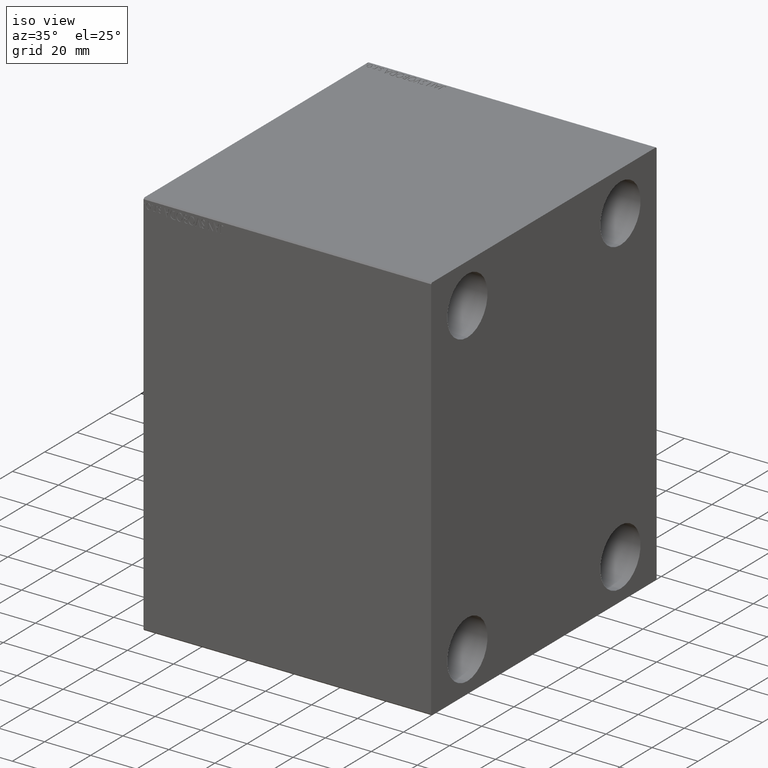
[diagram: clean part render]
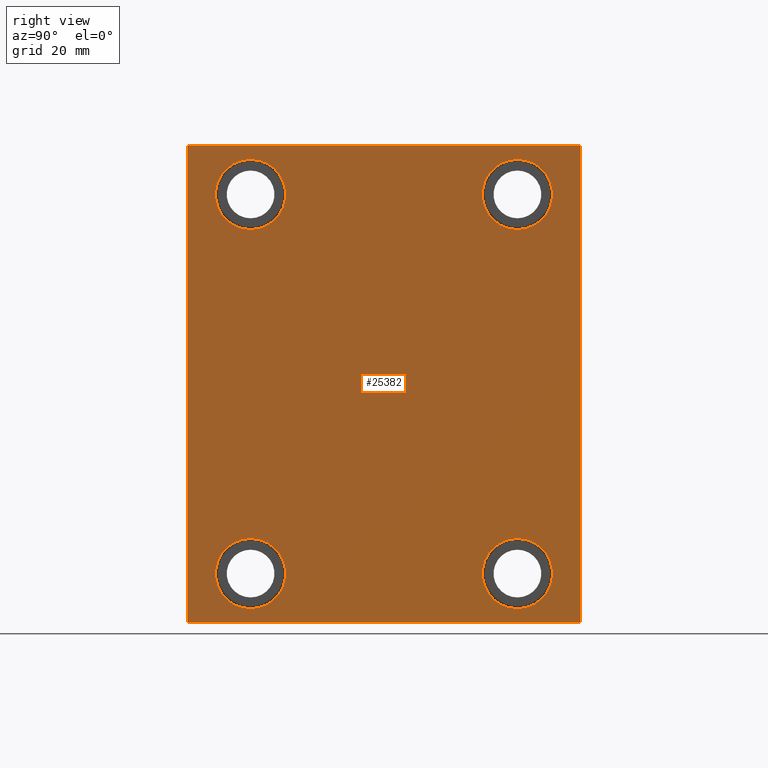
[diagram: tour spotlight — one face highlighted and labeled with its STEP entity id]
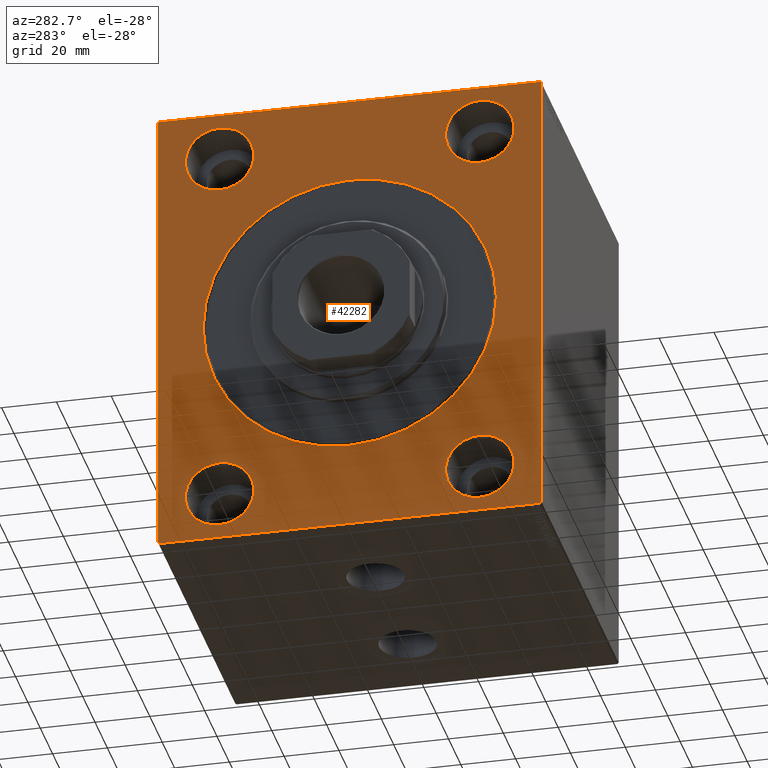
[diagram: tour spotlight — one face highlighted and labeled with its STEP entity id]
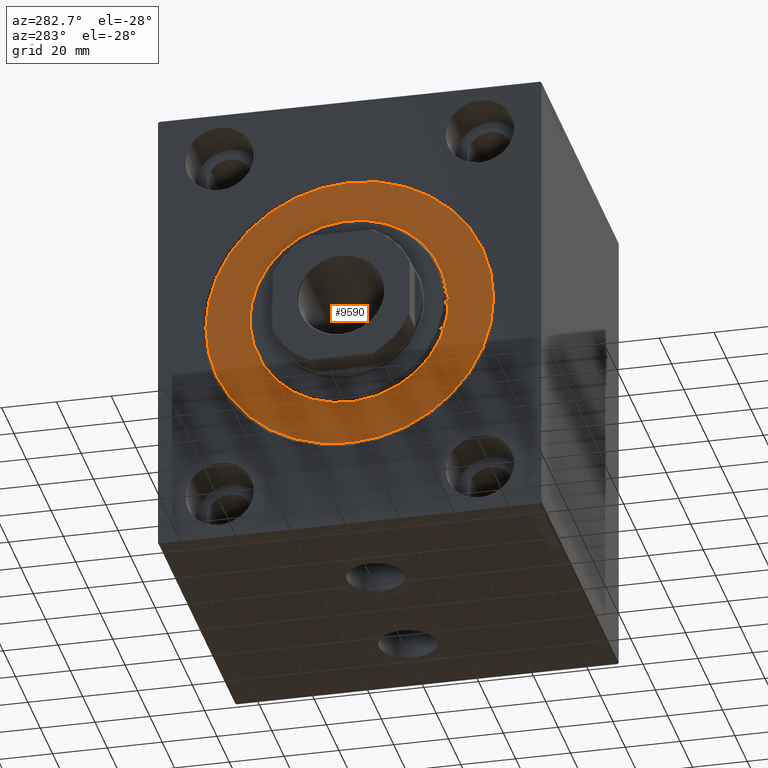
[diagram: tour spotlight — one face highlighted and labeled with its STEP entity id]
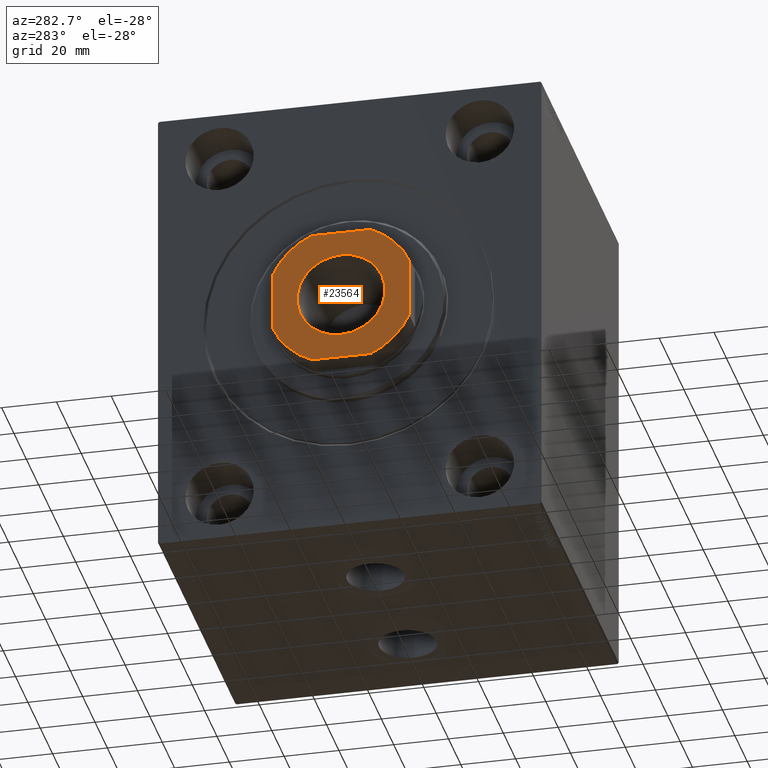
[diagram: tour spotlight — one face highlighted and labeled with its STEP entity id]
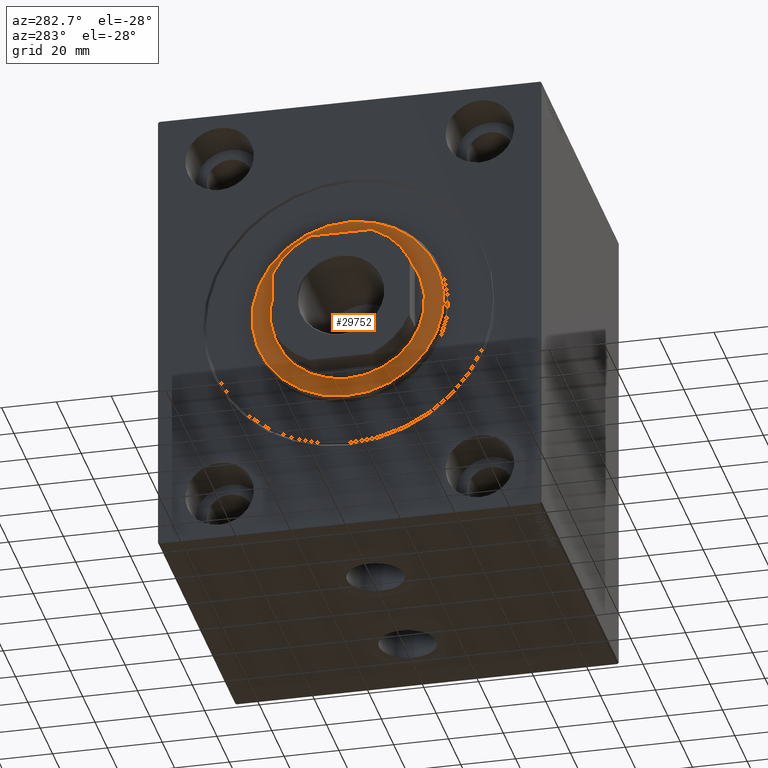
[diagram: tour spotlight — one face highlighted and labeled with its STEP entity id]
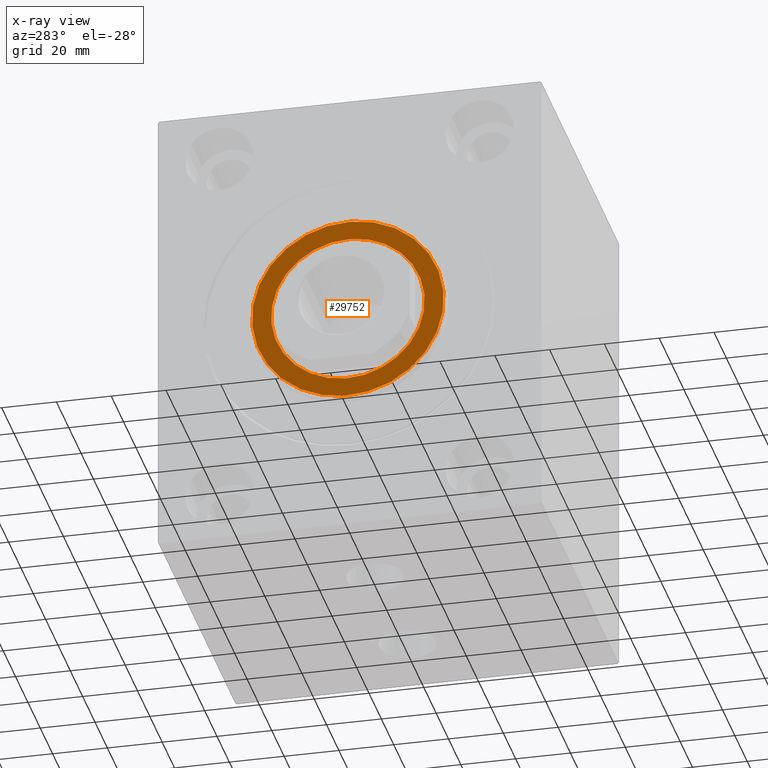
[diagram: x-ray of the same camera — body ghosted, this tour face saturated]
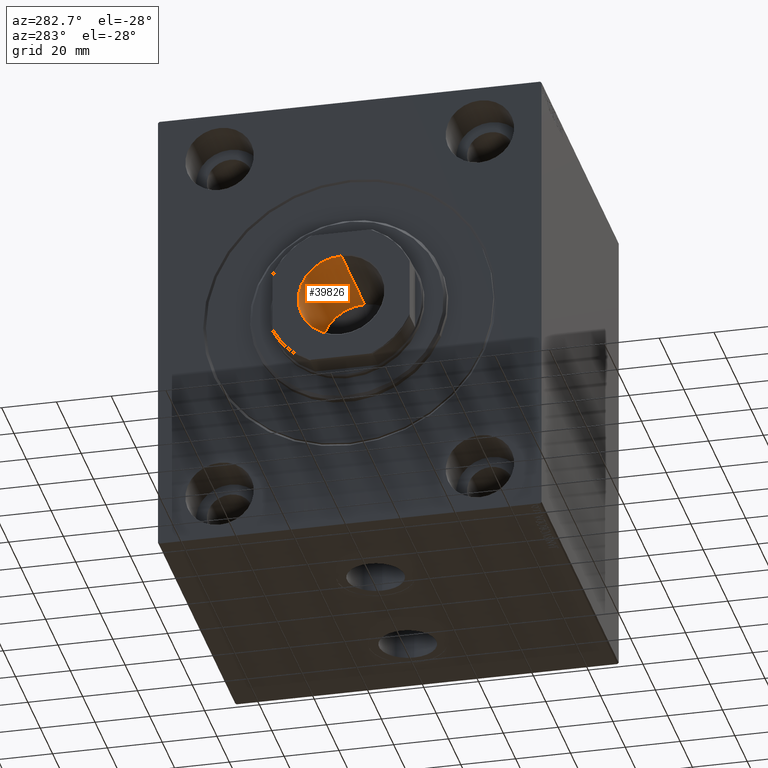
[diagram: tour spotlight — one face highlighted and labeled with its STEP entity id]
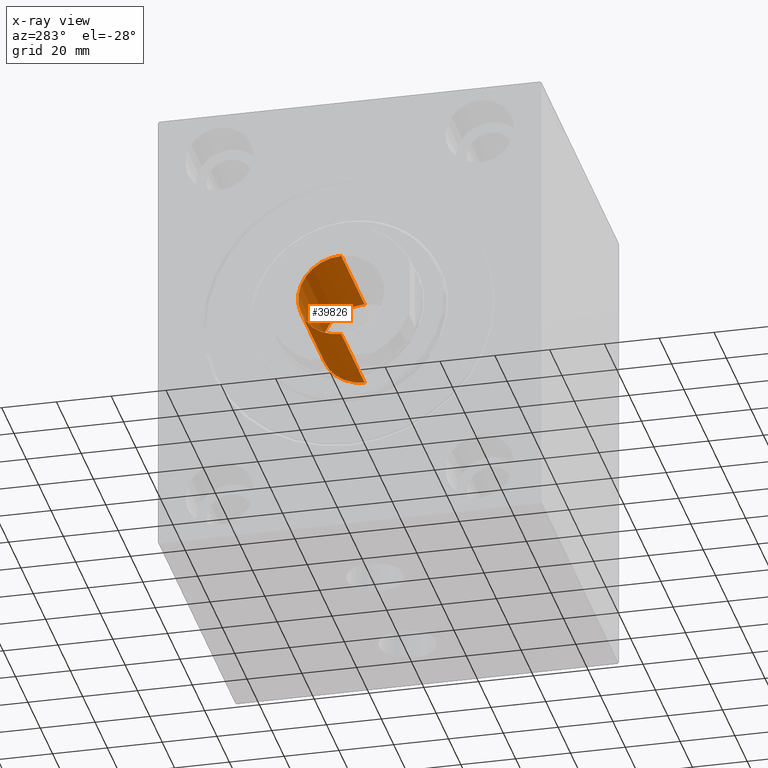
[diagram: x-ray of the same camera — body ghosted, this tour face saturated]
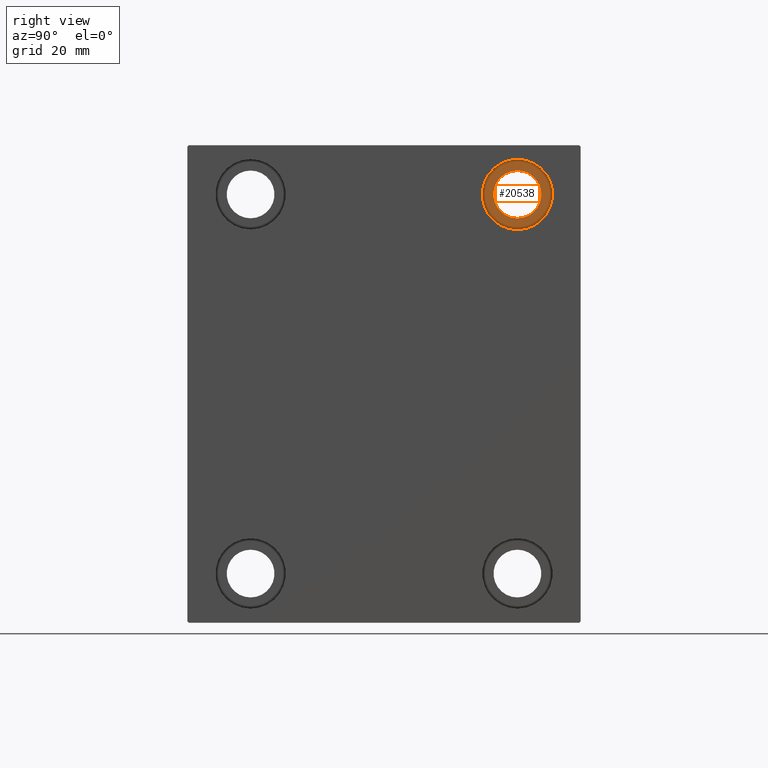
[diagram: tour spotlight — one face highlighted and labeled with its STEP entity id]
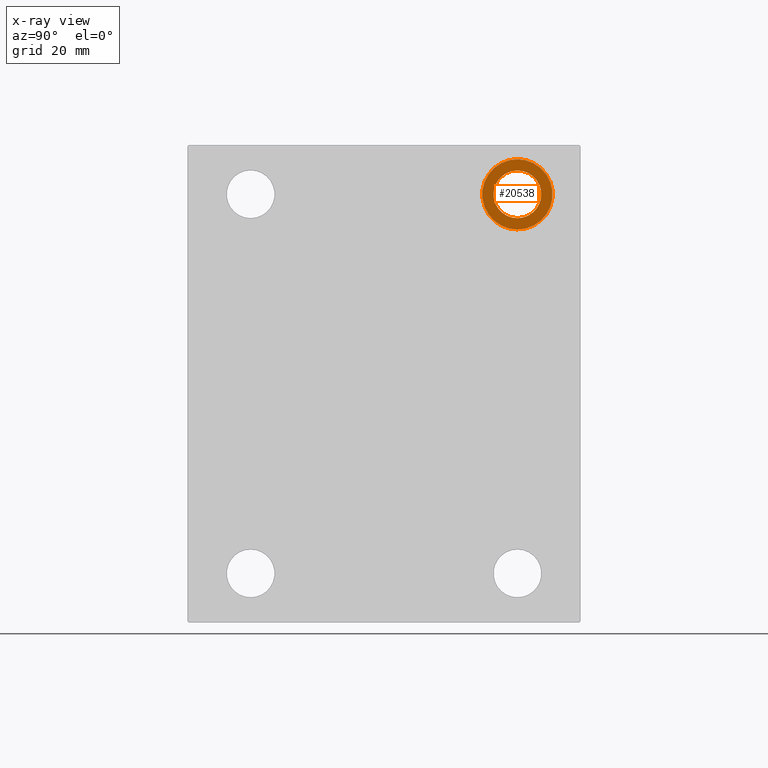
[diagram: x-ray of the same camera — body ghosted, this tour face saturated]
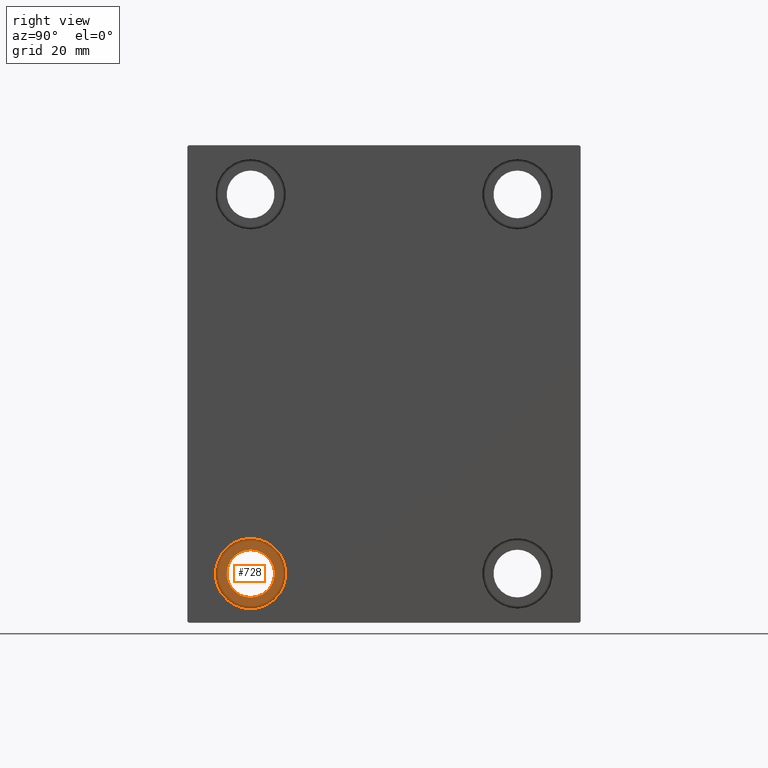
[diagram: tour spotlight — one face highlighted and labeled with its STEP entity id]
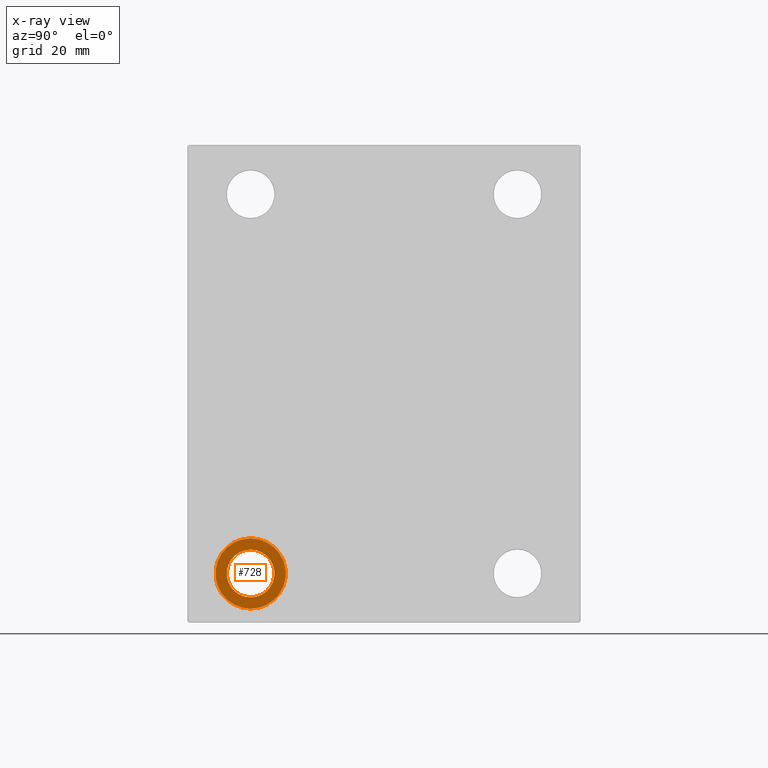
[diagram: x-ray of the same camera — body ghosted, this tour face saturated]
A machine part: a face-by-face anatomy tour. The part has 863 B-rep faces; the first image is the clean iso view, then the 8 largest visible faces are spotlighted one at a time (largest first), each with its STEP entity span.

Face 1 — right view, entity #25382. In plain terms, the highlighted planar face has unit normal (1, 0, 0).
Definition (entity closure, byte-faithful):
#46 = EDGE_CURVE ( 'NONE', #38748, #11351, #19874, .T. ) ;
#124 = VERTEX_POINT ( 'NONE', #10916 ) ;
#186 = ORIENTED_EDGE ( 'NONE', *, *, #43561, .T. ) ;
#932 = CARTESIAN_POINT ( 'NONE',  ( 125.0000000000000000, 47.50000000000000711, 67.50000000000000000 ) ) ;
#958 = VERTEX_POINT ( 'NONE', #6940 ) ;
#2119 = VERTEX_POINT ( 'NONE', #4474 ) ;
#2281 = AXIS2_PLACEMENT_3D ( 'NONE', #16155, #37038, #13243 ) ;
#2325 = DIRECTION ( 'NONE',  ( -1.000000000000000000, -0.000000000000000000, -0.000000000000000000 ) ) ;
#2379 = FACE_BOUND ( 'NONE', #17771, .T. ) ;
#2479 = CARTESIAN_POINT ( 'NONE',  ( 125.0000000000000000, 47.50000000000000711, -55.00000000000000711 ) ) ;
#2594 = FACE_BOUND ( 'NONE', #30062, .T. ) ;
#2765 = EDGE_CURVE ( 'NONE', #43585, #30818, #8477, .T. ) ;
#3259 = LINE ( 'NONE', #25366, #38083 ) ;
#3671 = DIRECTION ( 'NONE',  ( 0.000000000000000000, -1.000000000000000000, -9.912705577010325549E-17 ) ) ;
#3715 = EDGE_CURVE ( 'NONE', #38091, #28429, #23521, .T. ) ;
#4349 = ORIENTED_EDGE ( 'NONE', *, *, #23472, .T. ) ;
#4474 = CARTESIAN_POINT ( 'NONE',  ( 125.0000000000000000, 70.00000000000002842, -84.50000000000004263 ) ) ;
#5683 = CARTESIAN_POINT ( 'NONE',  ( 125.0000000000000000, -69.99999999999998579, -85.00000000000002842 ) ) ;
#5963 = CARTESIAN_POINT ( 'NONE',  ( 125.0000000000000000, 47.50000000000000711, -80.00000000000000000 ) ) ;
#6040 = AXIS2_PLACEMENT_3D ( 'NONE', #932, #37406, #13839 ) ;
#6487 = CARTESIAN_POINT ( 'NONE',  ( 125.0000000000000000, -47.49999999999999289, -67.50000000000000000 ) ) ;
#6564 = LINE ( 'NONE', #34144, #22833 ) ;
#6940 = CARTESIAN_POINT ( 'NONE',  ( 125.0000000000000000, -47.49999999999997868, 80.00000000000001421 ) ) ;
#7064 = CARTESIAN_POINT ( 'NONE',  ( 125.0000000000000000, -69.99999999999998579, 84.99999999999998579 ) ) ;
#7818 = DIRECTION ( 'NONE',  ( 0.000000000000000000, 0.000000000000000000, 1.000000000000000000 ) ) ;
#8030 = ORIENTED_EDGE ( 'NONE', *, *, #10793, .T. ) ;
#8193 = CIRCLE ( 'NONE', #37308, 12.50000000000001066 ) ;
#8477 = LINE ( 'NONE', #18493, #31306 ) ;
#8496 = CARTESIAN_POINT ( 'NONE',  ( 125.0000000000000000, -47.49999999999999289, -80.00000000000000000 ) ) ;
#8863 = ORIENTED_EDGE ( 'NONE', *, *, #2765, .T. ) ;
#8988 = DIRECTION ( 'NONE',  ( 0.000000000000000000, 0.000000000000000000, 1.000000000000000000 ) ) ;
#9706 = VECTOR ( 'NONE', #41365, 1000.000000000000000 ) ;
#10042 = DIRECTION ( 'NONE',  ( -1.000000000000000000, -0.000000000000000000, -0.000000000000000000 ) ) ;
#10595 = EDGE_CURVE ( 'NONE', #958, #15323, #35291, .T. ) ;
#10793 = EDGE_CURVE ( 'NONE', #2119, #30743, #31166, .T. ) ;
#10916 = CARTESIAN_POINT ( 'NONE',  ( 125.0000000000000000, 69.49999999999998579, 85.00000000000000000 ) ) ;
#11351 = VERTEX_POINT ( 'NONE', #8496 ) ;
#11523 = ORIENTED_EDGE ( 'NONE', *, *, #38945, .T. ) ;
#12066 = CARTESIAN_POINT ( 'NONE',  ( 125.0000000000000000, 70.00000000000001421, 84.49999999999995737 ) ) ;
#13086 = VECTOR ( 'NONE', #29723, 1000.000000000000000 ) ;
#13139 = CIRCLE ( 'NONE', #20969, 12.49999999999999645 ) ;
#13243 = DIRECTION ( 'NONE',  ( 0.000000000000000000, 0.000000000000000000, -1.000000000000000000 ) ) ;
#13839 = DIRECTION ( 'NONE',  ( 0.000000000000000000, 0.000000000000000000, 1.000000000000000000 ) ) ;
#13856 = DIRECTION ( 'NONE',  ( 0.000000000000000000, 0.000000000000000000, 1.000000000000000000 ) ) ;
#14365 = CARTESIAN_POINT ( 'NONE',  ( 125.0000000000000000, -69.99999999999998579, -84.49999999999998579 ) ) ;
#14662 = CIRCLE ( 'NONE', #24630, 12.49999999999999645 ) ;
#15323 = VERTEX_POINT ( 'NONE', #24785 ) ;
#15879 = CARTESIAN_POINT ( 'NONE',  ( 125.0000000000000000, 47.50000000000000711, 67.50000000000000000 ) ) ;
#16060 = DIRECTION ( 'NONE',  ( 0.000000000000000000, 0.000000000000000000, 1.000000000000000000 ) ) ;
#16155 = CARTESIAN_POINT ( 'NONE',  ( 125.0000000000000000, 0.000000000000000000, 0.000000000000000000 ) ) ;
#16943 = CARTESIAN_POINT ( 'NONE',  ( 125.0000000000000000, -69.49999999999994316, -85.00000000000002842 ) ) ;
#17051 = DIRECTION ( 'NONE',  ( 0.000000000000000000, 0.000000000000000000, 1.000000000000000000 ) ) ;
#17771 = EDGE_LOOP ( 'NONE', ( #186, #21205 ) ) ;
#17865 = EDGE_LOOP ( 'NONE', ( #39005, #34723 ) ) ;
#18493 = CARTESIAN_POINT ( 'NONE',  ( 125.0000000000000000, -77.24999999999901945, -77.25000000000116529 ) ) ;
#18632 = VERTEX_POINT ( 'NONE', #5963 ) ;
#19782 = CARTESIAN_POINT ( 'NONE',  ( 125.0000000000000000, 77.24999999999714362, -77.25000000000356692 ) ) ;
#19874 = CIRCLE ( 'NONE', #37629, 12.49999999999999645 ) ;
#20079 = ORIENTED_EDGE ( 'NONE', *, *, #43345, .T. ) ;
#20397 = DIRECTION ( 'NONE',  ( -1.000000000000000000, -0.000000000000000000, -0.000000000000000000 ) ) ;
#20835 = DIRECTION ( 'NONE',  ( 0.000000000000000000, 0.000000000000000000, 1.000000000000000000 ) ) ;
#20969 = AXIS2_PLACEMENT_3D ( 'NONE', #22047, #21831, #7818 ) ;
#21064 = LINE ( 'NONE', #7064, #28602 ) ;
#21205 = ORIENTED_EDGE ( 'NONE', *, *, #46, .T. ) ;
#21403 = DIRECTION ( 'NONE',  ( -1.000000000000000000, -0.000000000000000000, -0.000000000000000000 ) ) ;
#21424 = VERTEX_POINT ( 'NONE', #29409 ) ;
#21680 = ORIENTED_EDGE ( 'NONE', *, *, #40664, .T. ) ;
#21751 = AXIS2_PLACEMENT_3D ( 'NONE', #34610, #20397, #17051 ) ;
#21799 = AXIS2_PLACEMENT_3D ( 'NONE', #24102, #21403, #13856 ) ;
#21831 = DIRECTION ( 'NONE',  ( -1.000000000000000000, -0.000000000000000000, -0.000000000000000000 ) ) ;
#22047 = CARTESIAN_POINT ( 'NONE',  ( 125.0000000000000000, 47.50000000000000711, -67.50000000000000000 ) ) ;
#22050 = DIRECTION ( 'NONE',  ( -0.000000000000000000, 0.7071067811865574537, -0.7071067811865376918 ) ) ;
#22601 = ORIENTED_EDGE ( 'NONE', *, *, #36462, .T. ) ;
#22833 = VECTOR ( 'NONE', #3671, 1000.000000000000000 ) ;
#23042 = LINE ( 'NONE', #5683, #13086 ) ;
#23472 = EDGE_CURVE ( 'NONE', #124, #21424, #6564, .T. ) ;
#23486 = FACE_BOUND ( 'NONE', #29524, .T. ) ;
#23521 = CIRCLE ( 'NONE', #30643, 12.50000000000001066 ) ;
#24102 = CARTESIAN_POINT ( 'NONE',  ( 125.0000000000000000, -47.49999999999997868, 67.50000000000000000 ) ) ;
#24433 = ORIENTED_EDGE ( 'NONE', *, *, #43531, .T. ) ;
#24630 = AXIS2_PLACEMENT_3D ( 'NONE', #30857, #34398, #20835 ) ;
#24785 = CARTESIAN_POINT ( 'NONE',  ( 125.0000000000000000, -47.49999999999997868, 55.00000000000000000 ) ) ;
#25045 = VERTEX_POINT ( 'NONE', #2479 ) ;
#25366 = CARTESIAN_POINT ( 'NONE',  ( 125.0000000000000000, -77.24999999999997158, 77.24999999999997158 ) ) ;
#25382 = ADVANCED_FACE ( 'NONE', ( #23486, #2594, #26624, #2379, #36166 ), #25956, .T. ) ;
#25956 = PLANE ( 'NONE',  #2281 ) ;
#26092 = DIRECTION ( 'NONE',  ( -1.000000000000000000, -0.000000000000000000, -0.000000000000000000 ) ) ;
#26624 = FACE_BOUND ( 'NONE', #17865, .T. ) ;
#27026 = VERTEX_POINT ( 'NONE', #29544 ) ;
#27183 = DIRECTION ( 'NONE',  ( 0.000000000000000000, 0.000000000000000000, 1.000000000000000000 ) ) ;
#27657 = ORIENTED_EDGE ( 'NONE', *, *, #10595, .T. ) ;
#27842 = CARTESIAN_POINT ( 'NONE',  ( 125.0000000000000000, -47.49999999999997868, 67.50000000000000000 ) ) ;
#28063 = ORIENTED_EDGE ( 'NONE', *, *, #32228, .T. ) ;
#28133 = ORIENTED_EDGE ( 'NONE', *, *, #43591, .T. ) ;
#28429 = VERTEX_POINT ( 'NONE', #30532 ) ;
#28602 = VECTOR ( 'NONE', #34421, 1000.000000000000000 ) ;
#28703 = LINE ( 'NONE', #31174, #9706 ) ;
#29409 = CARTESIAN_POINT ( 'NONE',  ( 125.0000000000000000, -69.49999999999997158, 84.99999999999998579 ) ) ;
#29524 = EDGE_LOOP ( 'NONE', ( #28133, #11523 ) ) ;
#29544 = CARTESIAN_POINT ( 'NONE',  ( 125.0000000000000000, -69.99999999999998579, 84.49999999999995737 ) ) ;
#29723 = DIRECTION ( 'NONE',  ( 0.000000000000000000, 1.000000000000000000, 9.912705577010325549E-17 ) ) ;
#30062 = EDGE_LOOP ( 'NONE', ( #21680, #27657 ) ) ;
#30532 = CARTESIAN_POINT ( 'NONE',  ( 125.0000000000000000, 47.50000000000000711, 55.00000000000000000 ) ) ;
#30643 = AXIS2_PLACEMENT_3D ( 'NONE', #15879, #2325, #8988 ) ;
#30743 = VERTEX_POINT ( 'NONE', #12066 ) ;
#30818 = VERTEX_POINT ( 'NONE', #16943 ) ;
#30857 = CARTESIAN_POINT ( 'NONE',  ( 125.0000000000000000, 47.50000000000000711, -67.50000000000000000 ) ) ;
#31166 = LINE ( 'NONE', #34914, #33981 ) ;
#31174 = CARTESIAN_POINT ( 'NONE',  ( 125.0000000000000000, 77.25000000000096634, 77.24999999999883471 ) ) ;
#31306 = VECTOR ( 'NONE', #22050, 999.9999999999998863 ) ;
#32228 = EDGE_CURVE ( 'NONE', #27026, #43585, #21064, .T. ) ;
#33093 = CARTESIAN_POINT ( 'NONE',  ( 125.0000000000000000, 69.50000000000001421, -85.00000000000001421 ) ) ;
#33359 = LINE ( 'NONE', #19782, #33740 ) ;
#33620 = VERTEX_POINT ( 'NONE', #33093 ) ;
#33740 = VECTOR ( 'NONE', #43105, 1000.000000000000000 ) ;
#33863 = CIRCLE ( 'NONE', #21751, 12.49999999999999645 ) ;
#33981 = VECTOR ( 'NONE', #38020, 1000.000000000000000 ) ;
#34144 = CARTESIAN_POINT ( 'NONE',  ( 125.0000000000000000, 70.00000000000001421, 85.00000000000000000 ) ) ;
#34398 = DIRECTION ( 'NONE',  ( -1.000000000000000000, -0.000000000000000000, -0.000000000000000000 ) ) ;
#34421 = DIRECTION ( 'NONE',  ( 0.000000000000000000, 0.000000000000000000, -1.000000000000000000 ) ) ;
#34610 = CARTESIAN_POINT ( 'NONE',  ( 125.0000000000000000, -47.49999999999999289, -67.50000000000000000 ) ) ;
#34723 = ORIENTED_EDGE ( 'NONE', *, *, #3715, .T. ) ;
#34914 = CARTESIAN_POINT ( 'NONE',  ( 125.0000000000000000, 70.00000000000002842, -85.00000000000001421 ) ) ;
#35291 = CIRCLE ( 'NONE', #21799, 12.50000000000001066 ) ;
#36166 = FACE_OUTER_BOUND ( 'NONE', #40769, .T. ) ;
#36462 = EDGE_CURVE ( 'NONE', #30818, #33620, #23042, .T. ) ;
#37038 = DIRECTION ( 'NONE',  ( 1.000000000000000000, 0.000000000000000000, 0.000000000000000000 ) ) ;
#37308 = AXIS2_PLACEMENT_3D ( 'NONE', #27842, #10042, #27183 ) ;
#37406 = DIRECTION ( 'NONE',  ( -1.000000000000000000, -0.000000000000000000, -0.000000000000000000 ) ) ;
#37629 = AXIS2_PLACEMENT_3D ( 'NONE', #6487, #26092, #16060 ) ;
#37732 = ORIENTED_EDGE ( 'NONE', *, *, #39839, .T. ) ;
#38020 = DIRECTION ( 'NONE',  ( 0.000000000000000000, -8.163404592832031500E-17, 1.000000000000000000 ) ) ;
#38083 = VECTOR ( 'NONE', #38904, 1000.000000000000114 ) ;
#38091 = VERTEX_POINT ( 'NONE', #38213 ) ;
#38213 = CARTESIAN_POINT ( 'NONE',  ( 125.0000000000000000, 47.50000000000000711, 80.00000000000001421 ) ) ;
#38690 = CIRCLE ( 'NONE', #6040, 12.50000000000001066 ) ;
#38748 = VERTEX_POINT ( 'NONE', #43197 ) ;
#38820 = EDGE_CURVE ( 'NONE', #28429, #38091, #38690, .T. ) ;
#38904 = DIRECTION ( 'NONE',  ( 0.000000000000000000, -0.7071067811865474617, -0.7071067811865474617 ) ) ;
#38945 = EDGE_CURVE ( 'NONE', #25045, #18632, #13139, .T. ) ;
#39005 = ORIENTED_EDGE ( 'NONE', *, *, #38820, .T. ) ;
#39839 = EDGE_CURVE ( 'NONE', #33620, #2119, #33359, .T. ) ;
#40664 = EDGE_CURVE ( 'NONE', #15323, #958, #8193, .T. ) ;
#40769 = EDGE_LOOP ( 'NONE', ( #4349, #24433, #28063, #8863, #22601, #37732, #8030, #20079 ) ) ;
#41365 = DIRECTION ( 'NONE',  ( -0.000000000000000000, -0.7071067811865378028, 0.7071067811865573427 ) ) ;
#43105 = DIRECTION ( 'NONE',  ( -0.000000000000000000, 0.7071067811865769936, 0.7071067811865181518 ) ) ;
#43197 = CARTESIAN_POINT ( 'NONE',  ( 125.0000000000000000, -47.49999999999999289, -55.00000000000000711 ) ) ;
#43345 = EDGE_CURVE ( 'NONE', #30743, #124, #28703, .T. ) ;
#43531 = EDGE_CURVE ( 'NONE', #21424, #27026, #3259, .T. ) ;
#43561 = EDGE_CURVE ( 'NONE', #11351, #38748, #33863, .T. ) ;
#43585 = VERTEX_POINT ( 'NONE', #14365 ) ;
#43591 = EDGE_CURVE ( 'NONE', #18632, #25045, #14662, .T. ) ;

Face 2 — auxiliary view, entity #42282. In plain terms, the highlighted planar face has unit normal (1, 0, 0).
Definition (entity closure, byte-faithful):
#864 = CARTESIAN_POINT ( 'NONE',  ( 0.000000000000000000, -69.49999999999994316, -85.00000000000002842 ) ) ;
#1433 = CARTESIAN_POINT ( 'NONE',  ( 0.000000000000000000, -47.49999999999997868, 67.50000000000000000 ) ) ;
#1575 = CARTESIAN_POINT ( 'NONE',  ( 0.000000000000000000, 47.50000000000000711, 80.00000000000001421 ) ) ;
#1659 = DIRECTION ( 'NONE',  ( 0.000000000000000000, 0.000000000000000000, -1.000000000000000000 ) ) ;
#1900 = CIRCLE ( 'NONE', #11122, 12.50000000000001066 ) ;
#2313 = CARTESIAN_POINT ( 'NONE',  ( 0.000000000000000000, 70.00000000000002842, -84.50000000000004263 ) ) ;
#2572 = DIRECTION ( 'NONE',  ( -1.000000000000000000, 0.000000000000000000, 0.000000000000000000 ) ) ;
#2698 = CARTESIAN_POINT ( 'NONE',  ( 0.000000000000000000, -69.99999999999998579, 84.49999999999995737 ) ) ;
#3904 = EDGE_CURVE ( 'NONE', #20917, #13518, #26350, .T. ) ;
#3979 = AXIS2_PLACEMENT_3D ( 'NONE', #29085, #42170, #8166 ) ;
#4056 = CARTESIAN_POINT ( 'NONE',  ( 0.000000000000000000, -69.99999999999998579, 84.49999999999995737 ) ) ;
#4394 = FACE_BOUND ( 'NONE', #41073, .T. ) ;
#4413 = ORIENTED_EDGE ( 'NONE', *, *, #38711, .T. ) ;
#4504 = LINE ( 'NONE', #28323, #21532 ) ;
#4605 = FACE_OUTER_BOUND ( 'NONE', #39378, .T. ) ;
#4616 = DIRECTION ( 'NONE',  ( -0.000000000000000000, -0.7071067811865574537, 0.7071067811865376918 ) ) ;
#4809 = ORIENTED_EDGE ( 'NONE', *, *, #29459, .F. ) ;
#4885 = ORIENTED_EDGE ( 'NONE', *, *, #19788, .F. ) ;
#5098 = ORIENTED_EDGE ( 'NONE', *, *, #16600, .T. ) ;
#5366 = EDGE_CURVE ( 'NONE', #20587, #43303, #43985, .T. ) ;
#5588 = CARTESIAN_POINT ( 'NONE',  ( 0.000000000000000000, -47.49999999999997868, 80.00000000000001421 ) ) ;
#6664 = ORIENTED_EDGE ( 'NONE', *, *, #10323, .T. ) ;
#7100 = AXIS2_PLACEMENT_3D ( 'NONE', #31359, #11096, #34261 ) ;
#7257 = EDGE_CURVE ( 'NONE', #35793, #38640, #1900, .T. ) ;
#7262 = CARTESIAN_POINT ( 'NONE',  ( 0.000000000000000000, 47.50000000000000711, 67.50000000000000000 ) ) ;
#7326 = EDGE_CURVE ( 'NONE', #33297, #43303, #8567, .T. ) ;
#7475 = DIRECTION ( 'NONE',  ( 0.000000000000000000, 0.000000000000000000, 1.000000000000000000 ) ) ;
#8166 = DIRECTION ( 'NONE',  ( 0.000000000000000000, 0.000000000000000000, -1.000000000000000000 ) ) ;
#8326 = DIRECTION ( 'NONE',  ( -1.000000000000000000, 0.000000000000000000, 0.000000000000000000 ) ) ;
#8475 = ORIENTED_EDGE ( 'NONE', *, *, #33832, .T. ) ;
#8567 = LINE ( 'NONE', #31714, #18235 ) ;
#8717 = CARTESIAN_POINT ( 'NONE',  ( 0.000000000000000000, 47.50000000000000711, -67.50000000000000000 ) ) ;
#9426 = CIRCLE ( 'NONE', #34964, 12.49999999999999645 ) ;
#9434 = CARTESIAN_POINT ( 'NONE',  ( 0.000000000000000000, -69.99999999999998579, -85.00000000000002842 ) ) ;
#9576 = ORIENTED_EDGE ( 'NONE', *, *, #7257, .F. ) ;
#9747 = CARTESIAN_POINT ( 'NONE',  ( 0.000000000000000000, 6.551860375438343048E-15, -53.50000000000002842 ) ) ;
#10255 = CARTESIAN_POINT ( 'NONE',  ( 0.000000000000000000, -47.49999999999997868, 55.00000000000000000 ) ) ;
#10323 = EDGE_CURVE ( 'NONE', #32354, #32215, #17619, .T. ) ;
#10966 = ORIENTED_EDGE ( 'NONE', *, *, #11608, .F. ) ;
#11096 = DIRECTION ( 'NONE',  ( -1.000000000000000000, 0.000000000000000000, 0.000000000000000000 ) ) ;
#11122 = AXIS2_PLACEMENT_3D ( 'NONE', #7262, #37929, #7475 ) ;
#11227 = CIRCLE ( 'NONE', #22615, 12.50000000000001066 ) ;
#11281 = PLANE ( 'NONE',  #3979 ) ;
#11608 = EDGE_CURVE ( 'NONE', #16581, #13226, #11227, .T. ) ;
#11864 = CARTESIAN_POINT ( 'NONE',  ( 0.000000000000000000, 47.50000000000000711, 55.00000000000000000 ) ) ;
#11930 = EDGE_LOOP ( 'NONE', ( #40636, #28500 ) ) ;
#12084 = CARTESIAN_POINT ( 'NONE',  ( 0.000000000000000000, 47.50000000000000711, -80.00000000000000000 ) ) ;
#13015 = ORIENTED_EDGE ( 'NONE', *, *, #41875, .F. ) ;
#13226 = VERTEX_POINT ( 'NONE', #10255 ) ;
#13518 = VERTEX_POINT ( 'NONE', #23942 ) ;
#14119 = CARTESIAN_POINT ( 'NONE',  ( 0.000000000000000000, -69.49999999999997158, 84.99999999999998579 ) ) ;
#14897 = CIRCLE ( 'NONE', #7100, 12.49999999999999645 ) ;
#15420 = CARTESIAN_POINT ( 'NONE',  ( 0.000000000000000000, 0.000000000000000000, 53.50000000000002842 ) ) ;
#15844 = DIRECTION ( 'NONE',  ( -1.000000000000000000, 0.000000000000000000, 0.000000000000000000 ) ) ;
#16037 = DIRECTION ( 'NONE',  ( -0.000000000000000000, 0.7071067811865474617, 0.7071067811865474617 ) ) ;
#16447 = CARTESIAN_POINT ( 'NONE',  ( 0.000000000000000000, 70.00000000000002842, -85.00000000000001421 ) ) ;
#16581 = VERTEX_POINT ( 'NONE', #5588 ) ;
#16600 = EDGE_CURVE ( 'NONE', #24967, #28785, #23156, .T. ) ;
#17046 = CARTESIAN_POINT ( 'NONE',  ( 0.000000000000000000, -69.99999999999998579, -84.49999999999998579 ) ) ;
#17199 = CIRCLE ( 'NONE', #20056, 12.49999999999999645 ) ;
#17595 = CARTESIAN_POINT ( 'NONE',  ( 0.000000000000000000, 70.00000000000001421, 84.49999999999995737 ) ) ;
#17619 = CIRCLE ( 'NONE', #42440, 53.50000000000002842 ) ;
#17740 = EDGE_CURVE ( 'NONE', #20917, #33704, #35089, .T. ) ;
#18165 = AXIS2_PLACEMENT_3D ( 'NONE', #22792, #26578, #22127 ) ;
#18235 = VECTOR ( 'NONE', #21698, 1000.000000000000000 ) ;
#18336 = DIRECTION ( 'NONE',  ( 0.000000000000000000, 0.000000000000000000, 1.000000000000000000 ) ) ;
#18802 = CARTESIAN_POINT ( 'NONE',  ( 0.000000000000000000, -47.49999999999999289, -67.50000000000000000 ) ) ;
#18941 = EDGE_CURVE ( 'NONE', #13226, #16581, #31938, .T. ) ;
#18956 = CARTESIAN_POINT ( 'NONE',  ( 0.000000000000000000, 47.50000000000000711, -67.50000000000000000 ) ) ;
#19034 = DIRECTION ( 'NONE',  ( 0.000000000000000000, 0.000000000000000000, 1.000000000000000000 ) ) ;
#19064 = VECTOR ( 'NONE', #16037, 1000.000000000000114 ) ;
#19166 = VERTEX_POINT ( 'NONE', #12084 ) ;
#19725 = CARTESIAN_POINT ( 'NONE',  ( 0.000000000000000000, -69.49999999999994316, -85.00000000000002842 ) ) ;
#19788 = EDGE_CURVE ( 'NONE', #23468, #32095, #14897, .T. ) ;
#20056 = AXIS2_PLACEMENT_3D ( 'NONE', #8717, #29187, #38128 ) ;
#20587 = VERTEX_POINT ( 'NONE', #37531 ) ;
#20724 = VECTOR ( 'NONE', #27273, 1000.000000000000000 ) ;
#20774 = DIRECTION ( 'NONE',  ( 0.000000000000000000, 0.000000000000000000, -1.000000000000000000 ) ) ;
#20917 = VERTEX_POINT ( 'NONE', #19725 ) ;
#21195 = ORIENTED_EDGE ( 'NONE', *, *, #5366, .F. ) ;
#21532 = VECTOR ( 'NONE', #20774, 1000.000000000000000 ) ;
#21698 = DIRECTION ( 'NONE',  ( -0.000000000000000000, 0.7071067811865378028, -0.7071067811865573427 ) ) ;
#21767 = CARTESIAN_POINT ( 'NONE',  ( 0.000000000000000000, -47.49999999999999289, -55.00000000000000711 ) ) ;
#21961 = FACE_BOUND ( 'NONE', #11930, .T. ) ;
#22048 = VERTEX_POINT ( 'NONE', #27006 ) ;
#22127 = DIRECTION ( 'NONE',  ( 0.000000000000000000, 0.000000000000000000, 1.000000000000000000 ) ) ;
#22604 = CARTESIAN_POINT ( 'NONE',  ( 0.000000000000000000, -47.49999999999997868, 67.50000000000000000 ) ) ;
#22615 = AXIS2_PLACEMENT_3D ( 'NONE', #1433, #8326, #18336 ) ;
#22789 = DIRECTION ( 'NONE',  ( 1.000000000000000000, 0.000000000000000000, 0.000000000000000000 ) ) ;
#22792 = CARTESIAN_POINT ( 'NONE',  ( 0.000000000000000000, 47.50000000000000711, 67.50000000000000000 ) ) ;
#23156 = LINE ( 'NONE', #2698, #19064 ) ;
#23468 = VERTEX_POINT ( 'NONE', #37021 ) ;
#23942 = CARTESIAN_POINT ( 'NONE',  ( 0.000000000000000000, 69.50000000000001421, -85.00000000000001421 ) ) ;
#24967 = VERTEX_POINT ( 'NONE', #4056 ) ;
#25305 = FACE_BOUND ( 'NONE', #34791, .T. ) ;
#25542 = ORIENTED_EDGE ( 'NONE', *, *, #17740, .T. ) ;
#26238 = VECTOR ( 'NONE', #4616, 999.9999999999998863 ) ;
#26350 = LINE ( 'NONE', #9434, #29107 ) ;
#26535 = DIRECTION ( 'NONE',  ( 0.000000000000000000, 0.000000000000000000, 1.000000000000000000 ) ) ;
#26558 = LINE ( 'NONE', #2313, #40799 ) ;
#26578 = DIRECTION ( 'NONE',  ( -1.000000000000000000, 0.000000000000000000, 0.000000000000000000 ) ) ;
#26887 = ORIENTED_EDGE ( 'NONE', *, *, #34163, .F. ) ;
#27006 = CARTESIAN_POINT ( 'NONE',  ( 0.000000000000000000, 47.50000000000000711, -55.00000000000000711 ) ) ;
#27273 = DIRECTION ( 'NONE',  ( 0.000000000000000000, -1.000000000000000000, -9.912705577010325549E-17 ) ) ;
#27977 = AXIS2_PLACEMENT_3D ( 'NONE', #37924, #41262, #31708 ) ;
#28323 = CARTESIAN_POINT ( 'NONE',  ( 0.000000000000000000, -69.99999999999998579, 84.99999999999998579 ) ) ;
#28500 = ORIENTED_EDGE ( 'NONE', *, *, #43929, .F. ) ;
#28785 = VERTEX_POINT ( 'NONE', #14119 ) ;
#29085 = CARTESIAN_POINT ( 'NONE',  ( 0.000000000000000000, 0.000000000000000000, 0.000000000000000000 ) ) ;
#29107 = VECTOR ( 'NONE', #33242, 1000.000000000000000 ) ;
#29187 = DIRECTION ( 'NONE',  ( -1.000000000000000000, 0.000000000000000000, 0.000000000000000000 ) ) ;
#29459 = EDGE_CURVE ( 'NONE', #33297, #28785, #38115, .T. ) ;
#30219 = EDGE_CURVE ( 'NONE', #22048, #19166, #17199, .T. ) ;
#30291 = VECTOR ( 'NONE', #33369, 1000.000000000000000 ) ;
#31010 = CIRCLE ( 'NONE', #34551, 12.49999999999999645 ) ;
#31324 = EDGE_CURVE ( 'NONE', #32095, #23468, #9426, .T. ) ;
#31359 = CARTESIAN_POINT ( 'NONE',  ( 0.000000000000000000, -47.49999999999999289, -67.50000000000000000 ) ) ;
#31708 = DIRECTION ( 'NONE',  ( 0.000000000000000000, 0.000000000000000000, -1.000000000000000000 ) ) ;
#31714 = CARTESIAN_POINT ( 'NONE',  ( 0.000000000000000000, 69.49999999999998579, 85.00000000000000000 ) ) ;
#31938 = CIRCLE ( 'NONE', #39727, 12.50000000000001066 ) ;
#32095 = VERTEX_POINT ( 'NONE', #21767 ) ;
#32215 = VERTEX_POINT ( 'NONE', #9747 ) ;
#32354 = VERTEX_POINT ( 'NONE', #15420 ) ;
#32809 = CARTESIAN_POINT ( 'NONE',  ( 0.000000000000000000, 0.000000000000000000, 0.000000000000000000 ) ) ;
#33232 = DIRECTION ( 'NONE',  ( 0.000000000000000000, -0.7071067811865769936, -0.7071067811865181518 ) ) ;
#33242 = DIRECTION ( 'NONE',  ( 0.000000000000000000, 1.000000000000000000, 9.912705577010325549E-17 ) ) ;
#33297 = VERTEX_POINT ( 'NONE', #38090 ) ;
#33329 = ORIENTED_EDGE ( 'NONE', *, *, #31324, .F. ) ;
#33369 = DIRECTION ( 'NONE',  ( 0.000000000000000000, -8.163404592832031500E-17, 1.000000000000000000 ) ) ;
#33704 = VERTEX_POINT ( 'NONE', #17046 ) ;
#33832 = EDGE_CURVE ( 'NONE', #32215, #32354, #41421, .T. ) ;
#34163 = EDGE_CURVE ( 'NONE', #24967, #33704, #4504, .T. ) ;
#34261 = DIRECTION ( 'NONE',  ( 0.000000000000000000, 0.000000000000000000, 1.000000000000000000 ) ) ;
#34551 = AXIS2_PLACEMENT_3D ( 'NONE', #18956, #15844, #26535 ) ;
#34791 = EDGE_LOOP ( 'NONE', ( #9576, #13015 ) ) ;
#34964 = AXIS2_PLACEMENT_3D ( 'NONE', #18802, #2572, #43465 ) ;
#35011 = CARTESIAN_POINT ( 'NONE',  ( 0.000000000000000000, 70.00000000000001421, 85.00000000000000000 ) ) ;
#35089 = LINE ( 'NONE', #864, #26238 ) ;
#35793 = VERTEX_POINT ( 'NONE', #1575 ) ;
#35932 = DIRECTION ( 'NONE',  ( -1.000000000000000000, 0.000000000000000000, 0.000000000000000000 ) ) ;
#37021 = CARTESIAN_POINT ( 'NONE',  ( 0.000000000000000000, -47.49999999999999289, -80.00000000000000000 ) ) ;
#37336 = CIRCLE ( 'NONE', #18165, 12.50000000000001066 ) ;
#37531 = CARTESIAN_POINT ( 'NONE',  ( 0.000000000000000000, 70.00000000000002842, -84.50000000000004263 ) ) ;
#37924 = CARTESIAN_POINT ( 'NONE',  ( 0.000000000000000000, 0.000000000000000000, 0.000000000000000000 ) ) ;
#37929 = DIRECTION ( 'NONE',  ( -1.000000000000000000, 0.000000000000000000, 0.000000000000000000 ) ) ;
#38019 = EDGE_LOOP ( 'NONE', ( #33329, #4885 ) ) ;
#38090 = CARTESIAN_POINT ( 'NONE',  ( 0.000000000000000000, 69.49999999999998579, 85.00000000000000000 ) ) ;
#38115 = LINE ( 'NONE', #35011, #20724 ) ;
#38128 = DIRECTION ( 'NONE',  ( 0.000000000000000000, 0.000000000000000000, 1.000000000000000000 ) ) ;
#38401 = FACE_BOUND ( 'NONE', #43550, .T. ) ;
#38640 = VERTEX_POINT ( 'NONE', #11864 ) ;
#38711 = EDGE_CURVE ( 'NONE', #20587, #13518, #26558, .T. ) ;
#38846 = FACE_BOUND ( 'NONE', #38019, .T. ) ;
#38959 = ORIENTED_EDGE ( 'NONE', *, *, #7326, .T. ) ;
#39378 = EDGE_LOOP ( 'NONE', ( #26887, #5098, #4809, #38959, #21195, #4413, #43743, #25542 ) ) ;
#39727 = AXIS2_PLACEMENT_3D ( 'NONE', #22604, #35932, #19034 ) ;
#40636 = ORIENTED_EDGE ( 'NONE', *, *, #30219, .F. ) ;
#40799 = VECTOR ( 'NONE', #33232, 1000.000000000000000 ) ;
#41073 = EDGE_LOOP ( 'NONE', ( #10966, #42264 ) ) ;
#41262 = DIRECTION ( 'NONE',  ( 1.000000000000000000, 0.000000000000000000, 0.000000000000000000 ) ) ;
#41421 = CIRCLE ( 'NONE', #27977, 53.50000000000002842 ) ;
#41875 = EDGE_CURVE ( 'NONE', #38640, #35793, #37336, .T. ) ;
#42170 = DIRECTION ( 'NONE',  ( 1.000000000000000000, 0.000000000000000000, 0.000000000000000000 ) ) ;
#42264 = ORIENTED_EDGE ( 'NONE', *, *, #18941, .F. ) ;
#42282 = ADVANCED_FACE ( 'NONE', ( #38401, #21961, #4394, #25305, #38846, #4605 ), #11281, .F. ) ;
#42440 = AXIS2_PLACEMENT_3D ( 'NONE', #32809, #22789, #1659 ) ;
#43303 = VERTEX_POINT ( 'NONE', #17595 ) ;
#43465 = DIRECTION ( 'NONE',  ( 0.000000000000000000, 0.000000000000000000, 1.000000000000000000 ) ) ;
#43550 = EDGE_LOOP ( 'NONE', ( #6664, #8475 ) ) ;
#43743 = ORIENTED_EDGE ( 'NONE', *, *, #3904, .F. ) ;
#43929 = EDGE_CURVE ( 'NONE', #19166, #22048, #31010, .T. ) ;
#43985 = LINE ( 'NONE', #16447, #30291 ) ;

Face 3 — auxiliary view, entity #9590. In plain terms, the highlighted planar face has unit normal (1, 0, -0).
Definition (entity closure, byte-faithful):
#2556 = CARTESIAN_POINT ( 'NONE',  ( 0.000000000000000000, 4.408728476930470856E-15, -36.00000000000000000 ) ) ;
#3019 = CARTESIAN_POINT ( 'NONE',  ( 0.000000000000000000, 0.000000000000000000, 0.000000000000000000 ) ) ;
#3461 = CARTESIAN_POINT ( 'NONE',  ( 0.000000000000000000, 0.000000000000000000, 0.000000000000000000 ) ) ;
#6488 = AXIS2_PLACEMENT_3D ( 'NONE', #3019, #19489, #13023 ) ;
#6670 = DIRECTION ( 'NONE',  ( -1.000000000000000000, 0.000000000000000000, 0.000000000000000000 ) ) ;
#8505 = EDGE_CURVE ( 'NONE', #32135, #33908, #12605, .T. ) ;
#8976 = CARTESIAN_POINT ( 'NONE',  ( 0.000000000000000000, 0.000000000000000000, 0.000000000000000000 ) ) ;
#8985 = EDGE_CURVE ( 'NONE', #35327, #43214, #28231, .T. ) ;
#9590 = ADVANCED_FACE ( 'NONE', ( #16588, #40589 ), #23706, .F. ) ;
#10450 = CARTESIAN_POINT ( 'NONE',  ( 0.000000000000000000, 0.000000000000000000, 0.000000000000000000 ) ) ;
#11745 = CARTESIAN_POINT ( 'NONE',  ( 0.000000000000000000, 0.000000000000000000, 36.00000000000000000 ) ) ;
#12605 = CIRCLE ( 'NONE', #32483, 36.00000000000000000 ) ;
#13023 = DIRECTION ( 'NONE',  ( 0.000000000000000000, 0.000000000000000000, 1.000000000000000000 ) ) ;
#16070 = DIRECTION ( 'NONE',  ( 0.000000000000000000, 0.000000000000000000, -1.000000000000000000 ) ) ;
#16303 = DIRECTION ( 'NONE',  ( 0.000000000000000000, 0.000000000000000000, -1.000000000000000000 ) ) ;
#16588 = FACE_BOUND ( 'NONE', #17032, .T. ) ;
#16724 = ORIENTED_EDGE ( 'NONE', *, *, #8505, .F. ) ;
#16738 = DIRECTION ( 'NONE',  ( 1.000000000000000000, -0.000000000000000000, 0.000000000000000000 ) ) ;
#17032 = EDGE_LOOP ( 'NONE', ( #16724, #43450 ) ) ;
#17766 = DIRECTION ( 'NONE',  ( 0.000000000000000000, 0.000000000000000000, 1.000000000000000000 ) ) ;
#18099 = AXIS2_PLACEMENT_3D ( 'NONE', #8976, #16738, #16303 ) ;
#19489 = DIRECTION ( 'NONE',  ( -1.000000000000000000, 0.000000000000000000, 0.000000000000000000 ) ) ;
#23406 = CARTESIAN_POINT ( 'NONE',  ( 0.000000000000000000, 0.000000000000000000, 0.000000000000000000 ) ) ;
#23706 = PLANE ( 'NONE',  #25436 ) ;
#25436 = AXIS2_PLACEMENT_3D ( 'NONE', #3461, #40808, #37473 ) ;
#28231 = CIRCLE ( 'NONE', #39604, 52.49999999999999289 ) ;
#28646 = EDGE_CURVE ( 'NONE', #43214, #35327, #41307, .T. ) ;
#30546 = ORIENTED_EDGE ( 'NONE', *, *, #28646, .F. ) ;
#31988 = ORIENTED_EDGE ( 'NONE', *, *, #8985, .F. ) ;
#32135 = VERTEX_POINT ( 'NONE', #11745 ) ;
#32343 = CIRCLE ( 'NONE', #18099, 36.00000000000000000 ) ;
#32483 = AXIS2_PLACEMENT_3D ( 'NONE', #23406, #43405, #16070 ) ;
#32668 = EDGE_LOOP ( 'NONE', ( #30546, #31988 ) ) ;
#32770 = CARTESIAN_POINT ( 'NONE',  ( 0.000000000000000000, 6.429395695523603167E-15, 52.49999999999999289 ) ) ;
#33629 = CARTESIAN_POINT ( 'NONE',  ( 0.000000000000000000, 0.000000000000000000, -52.49999999999999289 ) ) ;
#33908 = VERTEX_POINT ( 'NONE', #2556 ) ;
#35327 = VERTEX_POINT ( 'NONE', #32770 ) ;
#37473 = DIRECTION ( 'NONE',  ( 0.000000000000000000, 0.000000000000000000, 1.000000000000000000 ) ) ;
#38744 = EDGE_CURVE ( 'NONE', #33908, #32135, #32343, .T. ) ;
#39604 = AXIS2_PLACEMENT_3D ( 'NONE', #10450, #6670, #17766 ) ;
#40589 = FACE_OUTER_BOUND ( 'NONE', #32668, .T. ) ;
#40808 = DIRECTION ( 'NONE',  ( -1.000000000000000000, 0.000000000000000000, 0.000000000000000000 ) ) ;
#41307 = CIRCLE ( 'NONE', #6488, 52.49999999999999289 ) ;
#43214 = VERTEX_POINT ( 'NONE', #33629 ) ;
#43405 = DIRECTION ( 'NONE',  ( 1.000000000000000000, -0.000000000000000000, 0.000000000000000000 ) ) ;
#43450 = ORIENTED_EDGE ( 'NONE', *, *, #38744, .F. ) ;

Face 4 — auxiliary view, entity #23564. In plain terms, the highlighted planar face has unit normal (-1, 0, 0).
Definition (entity closure, byte-faithful):
#518 = CARTESIAN_POINT ( 'NONE',  ( 24.99999999999999645, 25.00000000000000355, 64.99999999999998579 ) ) ;
#2046 = EDGE_CURVE ( 'NONE', #27828, #32901, #41933, .T. ) ;
#2843 = ORIENTED_EDGE ( 'NONE', *, *, #28526, .T. ) ;
#3120 = CARTESIAN_POINT ( 'NONE',  ( 10.71634265969509769, 25.00000000000000355, 64.99999999999998579 ) ) ;
#3346 = CARTESIAN_POINT ( 'NONE',  ( -24.99999999999999645, -10.71634265969507460, 64.99999999999998579 ) ) ;
#4052 = VERTEX_POINT ( 'NONE', #23991 ) ;
#4348 = CARTESIAN_POINT ( 'NONE',  ( 0.000000000000000000, 0.000000000000000000, 64.99999999999998579 ) ) ;
#4506 = VECTOR ( 'NONE', #42685, 1000.000000000000000 ) ;
#4545 = CARTESIAN_POINT ( 'NONE',  ( 0.000000000000000000, 0.000000000000000000, 64.99999999999998579 ) ) ;
#4968 = FACE_BOUND ( 'NONE', #11046, .T. ) ;
#5031 = AXIS2_PLACEMENT_3D ( 'NONE', #32061, #38492, #14920 ) ;
#5051 = EDGE_CURVE ( 'NONE', #7111, #19654, #22481, .T. ) ;
#5329 = DIRECTION ( 'NONE',  ( -1.000000000000000000, -6.938893903907228378E-17, -0.000000000000000000 ) ) ;
#6138 = DIRECTION ( 'NONE',  ( 1.000000000000000000, 0.000000000000000000, 0.000000000000000000 ) ) ;
#6515 = ORIENTED_EDGE ( 'NONE', *, *, #5051, .T. ) ;
#6626 = ORIENTED_EDGE ( 'NONE', *, *, #13690, .T. ) ;
#7111 = VERTEX_POINT ( 'NONE', #16177 ) ;
#8568 = CARTESIAN_POINT ( 'NONE',  ( 0.000000000000000000, 0.000000000000000000, 64.99999999999998579 ) ) ;
#8773 = ORIENTED_EDGE ( 'NONE', *, *, #2046, .T. ) ;
#8991 = ORIENTED_EDGE ( 'NONE', *, *, #35821, .T. ) ;
#9130 = CARTESIAN_POINT ( 'NONE',  ( -25.00000000000000355, 25.00000000000000000, 64.99999999999998579 ) ) ;
#9208 = ORIENTED_EDGE ( 'NONE', *, *, #41592, .T. ) ;
#10120 = AXIS2_PLACEMENT_3D ( 'NONE', #8568, #29043, #19016 ) ;
#10751 = LINE ( 'NONE', #518, #15671 ) ;
#11046 = EDGE_LOOP ( 'NONE', ( #8773, #38055 ) ) ;
#11184 = VECTOR ( 'NONE', #19675, 1000.000000000000000 ) ;
#11199 = PLANE ( 'NONE',  #21385 ) ;
#12288 = ORIENTED_EDGE ( 'NONE', *, *, #22113, .T. ) ;
#12691 = CIRCLE ( 'NONE', #37538, 27.20000000000001350 ) ;
#13536 = DIRECTION ( 'NONE',  ( 1.000000000000000000, 0.000000000000000000, 0.000000000000000000 ) ) ;
#13690 = EDGE_CURVE ( 'NONE', #4052, #25656, #16329, .T. ) ;
#14084 = DIRECTION ( 'NONE',  ( -6.938893903907228378E-17, 1.000000000000000000, -0.000000000000000000 ) ) ;
#14849 = CARTESIAN_POINT ( 'NONE',  ( -25.00000000000000000, 10.71634265969503730, 64.99999999999998579 ) ) ;
#14920 = DIRECTION ( 'NONE',  ( 1.000000000000000000, 0.000000000000000000, 0.000000000000000000 ) ) ;
#15356 = AXIS2_PLACEMENT_3D ( 'NONE', #4348, #42949, #32149 ) ;
#15563 = CARTESIAN_POINT ( 'NONE',  ( -25.00000000000000355, 25.00000000000000000, 64.99999999999998579 ) ) ;
#15671 = VECTOR ( 'NONE', #14084, 1000.000000000000000 ) ;
#16177 = CARTESIAN_POINT ( 'NONE',  ( 25.00000000000000000, 10.71634265969510658, 64.99999999999998579 ) ) ;
#16329 = LINE ( 'NONE', #22576, #11184 ) ;
#16899 = EDGE_CURVE ( 'NONE', #25656, #19766, #12691, .T. ) ;
#17731 = VERTEX_POINT ( 'NONE', #14849 ) ;
#17849 = CIRCLE ( 'NONE', #22856, 27.19999999999999574 ) ;
#18906 = LINE ( 'NONE', #9130, #4506 ) ;
#19016 = DIRECTION ( 'NONE',  ( 1.000000000000000000, 0.000000000000000000, 0.000000000000000000 ) ) ;
#19654 = VERTEX_POINT ( 'NONE', #3120 ) ;
#19675 = DIRECTION ( 'NONE',  ( 1.000000000000000000, 0.000000000000000000, 0.000000000000000000 ) ) ;
#19766 = VERTEX_POINT ( 'NONE', #38006 ) ;
#19777 = ORIENTED_EDGE ( 'NONE', *, *, #16899, .T. ) ;
#20063 = CIRCLE ( 'NONE', #10120, 27.20000000000000995 ) ;
#21385 = AXIS2_PLACEMENT_3D ( 'NONE', #24782, #35000, #38546 ) ;
#21730 = VECTOR ( 'NONE', #5329, 1000.000000000000000 ) ;
#22113 = EDGE_CURVE ( 'NONE', #19766, #7111, #10751, .T. ) ;
#22222 = CARTESIAN_POINT ( 'NONE',  ( -16.04999999999996874, 1.965558112631497866E-15, 64.99999999999998579 ) ) ;
#22481 = CIRCLE ( 'NONE', #15356, 27.20000000000002416 ) ;
#22576 = CARTESIAN_POINT ( 'NONE',  ( -24.99999999999999289, -25.00000000000000000, 64.99999999999998579 ) ) ;
#22605 = EDGE_CURVE ( 'NONE', #32901, #27828, #31336, .T. ) ;
#22856 = AXIS2_PLACEMENT_3D ( 'NONE', #29511, #30160, #6138 ) ;
#23564 = ADVANCED_FACE ( 'NONE', ( #4968, #28128 ), #11199, .T. ) ;
#23991 = CARTESIAN_POINT ( 'NONE',  ( -10.71634265969507283, -25.00000000000000000, 64.99999999999998579 ) ) ;
#24782 = CARTESIAN_POINT ( 'NONE',  ( 0.000000000000000000, 0.000000000000000000, 64.99999999999998579 ) ) ;
#25027 = DIRECTION ( 'NONE',  ( 1.000000000000000000, 0.000000000000000000, 0.000000000000000000 ) ) ;
#25159 = VERTEX_POINT ( 'NONE', #3346 ) ;
#25656 = VERTEX_POINT ( 'NONE', #41667 ) ;
#26515 = EDGE_CURVE ( 'NONE', #25159, #4052, #20063, .T. ) ;
#27828 = VERTEX_POINT ( 'NONE', #42691 ) ;
#28128 = FACE_OUTER_BOUND ( 'NONE', #29026, .T. ) ;
#28526 = EDGE_CURVE ( 'NONE', #30870, #17731, #17849, .T. ) ;
#29026 = EDGE_LOOP ( 'NONE', ( #12288, #6515, #9208, #2843, #8991, #33703, #6626, #19777 ) ) ;
#29043 = DIRECTION ( 'NONE',  ( -0.000000000000000000, 0.000000000000000000, 1.000000000000000000 ) ) ;
#29511 = CARTESIAN_POINT ( 'NONE',  ( 0.000000000000000000, 0.000000000000000000, 64.99999999999998579 ) ) ;
#29815 = LINE ( 'NONE', #15563, #21730 ) ;
#30160 = DIRECTION ( 'NONE',  ( -0.000000000000000000, 0.000000000000000000, 1.000000000000000000 ) ) ;
#30870 = VERTEX_POINT ( 'NONE', #34939 ) ;
#31336 = CIRCLE ( 'NONE', #34873, 16.04999999999996874 ) ;
#32061 = CARTESIAN_POINT ( 'NONE',  ( 0.000000000000000000, 0.000000000000000000, 64.99999999999998579 ) ) ;
#32149 = DIRECTION ( 'NONE',  ( 1.000000000000000000, 0.000000000000000000, 0.000000000000000000 ) ) ;
#32901 = VERTEX_POINT ( 'NONE', #22222 ) ;
#33703 = ORIENTED_EDGE ( 'NONE', *, *, #26515, .T. ) ;
#33788 = CARTESIAN_POINT ( 'NONE',  ( 0.000000000000000000, 0.000000000000000000, 64.99999999999998579 ) ) ;
#34873 = AXIS2_PLACEMENT_3D ( 'NONE', #33788, #43980, #13536 ) ;
#34939 = CARTESIAN_POINT ( 'NONE',  ( -10.71634265969503019, 25.00000000000000355, 64.99999999999998579 ) ) ;
#35000 = DIRECTION ( 'NONE',  ( -0.000000000000000000, 0.000000000000000000, 1.000000000000000000 ) ) ;
#35821 = EDGE_CURVE ( 'NONE', #17731, #25159, #18906, .T. ) ;
#37538 = AXIS2_PLACEMENT_3D ( 'NONE', #4545, #41887, #25027 ) ;
#38006 = CARTESIAN_POINT ( 'NONE',  ( 25.00000000000000000, -10.71634265969507638, 64.99999999999998579 ) ) ;
#38055 = ORIENTED_EDGE ( 'NONE', *, *, #22605, .T. ) ;
#38492 = DIRECTION ( 'NONE',  ( 0.000000000000000000, -0.000000000000000000, -1.000000000000000000 ) ) ;
#38546 = DIRECTION ( 'NONE',  ( 1.000000000000000000, 0.000000000000000000, 0.000000000000000000 ) ) ;
#41592 = EDGE_CURVE ( 'NONE', #19654, #30870, #29815, .T. ) ;
#41667 = CARTESIAN_POINT ( 'NONE',  ( 10.71634265969508704, -24.99999999999999289, 64.99999999999998579 ) ) ;
#41887 = DIRECTION ( 'NONE',  ( -0.000000000000000000, 0.000000000000000000, 1.000000000000000000 ) ) ;
#41933 = CIRCLE ( 'NONE', #5031, 16.04999999999996874 ) ;
#42685 = DIRECTION ( 'NONE',  ( 2.081668171172168513E-16, -1.000000000000000000, 0.000000000000000000 ) ) ;
#42691 = CARTESIAN_POINT ( 'NONE',  ( 16.04999999999996874, 0.000000000000000000, 64.99999999999998579 ) ) ;
#42949 = DIRECTION ( 'NONE',  ( -0.000000000000000000, 0.000000000000000000, 1.000000000000000000 ) ) ;
#43980 = DIRECTION ( 'NONE',  ( 0.000000000000000000, -0.000000000000000000, -1.000000000000000000 ) ) ;

Face 5 — auxiliary view, entity #29752. An x-ray twin of the same camera follows (body ghosted, this face saturated) — the face is partly hidden behind the body. In plain terms, the highlighted planar face has unit normal (-1, 0, 0).
Definition (entity closure, byte-faithful):
#508 = FACE_BOUND ( 'NONE', #18304, .T. ) ;
#704 = CARTESIAN_POINT ( 'NONE',  ( 3.000000000000000000, 0.000000000000000000, 35.00000000000001421 ) ) ;
#944 = PLANE ( 'NONE',  #25717 ) ;
#1205 = VERTEX_POINT ( 'NONE', #8909 ) ;
#1355 = CARTESIAN_POINT ( 'NONE',  ( 3.000000000000000000, 0.000000000000000000, 0.000000000000000000 ) ) ;
#2017 = CARTESIAN_POINT ( 'NONE',  ( 3.000000000000000000, 0.000000000000000000, 0.000000000000000000 ) ) ;
#3625 = DIRECTION ( 'NONE',  ( 1.000000000000000000, -0.000000000000000000, 0.000000000000000000 ) ) ;
#3958 = ORIENTED_EDGE ( 'NONE', *, *, #35870, .T. ) ;
#4686 = DIRECTION ( 'NONE',  ( 1.000000000000000000, 0.000000000000000000, 0.000000000000000000 ) ) ;
#6092 = VERTEX_POINT ( 'NONE', #16068 ) ;
#8123 = ORIENTED_EDGE ( 'NONE', *, *, #34909, .T. ) ;
#8779 = CARTESIAN_POINT ( 'NONE',  ( 3.000000000000000000, 0.000000000000000000, -28.00000000000000000 ) ) ;
#8909 = CARTESIAN_POINT ( 'NONE',  ( 3.000000000000000000, 3.429011037612589276E-15, 28.00000000000000000 ) ) ;
#13819 = DIRECTION ( 'NONE',  ( 1.000000000000000000, 0.000000000000000000, 0.000000000000000000 ) ) ;
#15891 = CIRCLE ( 'NONE', #19452, 35.00000000000001421 ) ;
#16068 = CARTESIAN_POINT ( 'NONE',  ( 3.000000000000000000, 4.347496136973104859E-15, -35.00000000000001421 ) ) ;
#17194 = DIRECTION ( 'NONE',  ( 0.000000000000000000, 0.000000000000000000, -1.000000000000000000 ) ) ;
#17349 = EDGE_CURVE ( 'NONE', #21887, #1205, #32613, .T. ) ;
#18247 = DIRECTION ( 'NONE',  ( 0.000000000000000000, 0.000000000000000000, -1.000000000000000000 ) ) ;
#18270 = ORIENTED_EDGE ( 'NONE', *, *, #27716, .F. ) ;
#18304 = EDGE_LOOP ( 'NONE', ( #21039, #18270 ) ) ;
#19359 = AXIS2_PLACEMENT_3D ( 'NONE', #1355, #4686, #34516 ) ;
#19452 = AXIS2_PLACEMENT_3D ( 'NONE', #2017, #42461, #18247 ) ;
#21039 = ORIENTED_EDGE ( 'NONE', *, *, #17349, .F. ) ;
#21887 = VERTEX_POINT ( 'NONE', #8779 ) ;
#25131 = AXIS2_PLACEMENT_3D ( 'NONE', #35916, #32156, #39463 ) ;
#25717 = AXIS2_PLACEMENT_3D ( 'NONE', #37855, #3625, #17194 ) ;
#25731 = VERTEX_POINT ( 'NONE', #704 ) ;
#26628 = EDGE_LOOP ( 'NONE', ( #3958, #8123 ) ) ;
#27632 = CARTESIAN_POINT ( 'NONE',  ( 3.000000000000000000, 0.000000000000000000, 0.000000000000000000 ) ) ;
#27716 = EDGE_CURVE ( 'NONE', #1205, #21887, #38510, .T. ) ;
#29752 = ADVANCED_FACE ( 'NONE', ( #41612, #508 ), #944, .T. ) ;
#32156 = DIRECTION ( 'NONE',  ( 1.000000000000000000, -0.000000000000000000, 0.000000000000000000 ) ) ;
#32613 = CIRCLE ( 'NONE', #40394, 28.00000000000000000 ) ;
#33048 = DIRECTION ( 'NONE',  ( 0.000000000000000000, 0.000000000000000000, -1.000000000000000000 ) ) ;
#33676 = CIRCLE ( 'NONE', #25131, 35.00000000000001421 ) ;
#34516 = DIRECTION ( 'NONE',  ( 0.000000000000000000, 0.000000000000000000, -1.000000000000000000 ) ) ;
#34909 = EDGE_CURVE ( 'NONE', #6092, #25731, #33676, .T. ) ;
#35870 = EDGE_CURVE ( 'NONE', #25731, #6092, #15891, .T. ) ;
#35916 = CARTESIAN_POINT ( 'NONE',  ( 3.000000000000000000, 0.000000000000000000, 0.000000000000000000 ) ) ;
#37855 = CARTESIAN_POINT ( 'NONE',  ( 3.000000000000000000, 0.000000000000000000, 0.000000000000000000 ) ) ;
#38510 = CIRCLE ( 'NONE', #19359, 28.00000000000000000 ) ;
#39463 = DIRECTION ( 'NONE',  ( 0.000000000000000000, 0.000000000000000000, -1.000000000000000000 ) ) ;
#40394 = AXIS2_PLACEMENT_3D ( 'NONE', #27632, #13819, #33048 ) ;
#41612 = FACE_OUTER_BOUND ( 'NONE', #26628, .T. ) ;
#42461 = DIRECTION ( 'NONE',  ( 1.000000000000000000, -0.000000000000000000, 0.000000000000000000 ) ) ;

Face 6 — auxiliary view, entity #39826. An x-ray twin of the same camera follows (body ghosted, this face saturated) — the face is partly hidden behind the body. In plain terms, the highlighted cylindrical surface (partial cylindrical patch) has radius 15.75 mm, axis along (-1, 0, 0).
Definition (entity closure, byte-faithful):
#334 = VECTOR ( 'NONE', #17242, 1000.000000000000000 ) ;
#662 = CIRCLE ( 'NONE', #14150, 15.74999999999999289 ) ;
#687 = AXIS2_PLACEMENT_3D ( 'NONE', #12955, #20084, #32999 ) ;
#1897 = CARTESIAN_POINT ( 'NONE',  ( 0.000000000000000000, 0.000000000000000000, 26.99999999999998934 ) ) ;
#3675 = LINE ( 'NONE', #3889, #334 ) ;
#3889 = CARTESIAN_POINT ( 'NONE',  ( -15.74999999999999289, 1.928818708657080556E-15, 64.99999999999998579 ) ) ;
#5007 = ORIENTED_EDGE ( 'NONE', *, *, #17230, .F. ) ;
#8280 = LINE ( 'NONE', #25196, #27612 ) ;
#9161 = VERTEX_POINT ( 'NONE', #29555 ) ;
#11319 = EDGE_CURVE ( 'NONE', #21070, #9161, #8280, .T. ) ;
#12955 = CARTESIAN_POINT ( 'NONE',  ( 0.000000000000000000, 0.000000000000000000, 64.70000000000000284 ) ) ;
#14150 = AXIS2_PLACEMENT_3D ( 'NONE', #1897, #42133, #21700 ) ;
#15216 = CARTESIAN_POINT ( 'NONE',  ( 15.74999999999999289, 0.000000000000000000, 26.99999999999998934 ) ) ;
#16987 = VERTEX_POINT ( 'NONE', #25685 ) ;
#17230 = EDGE_CURVE ( 'NONE', #21070, #16987, #662, .T. ) ;
#17242 = DIRECTION ( 'NONE',  ( -0.000000000000000000, -0.000000000000000000, 1.000000000000000000 ) ) ;
#17704 = CIRCLE ( 'NONE', #687, 15.74999999999999289 ) ;
#18442 = EDGE_CURVE ( 'NONE', #9161, #36659, #17704, .T. ) ;
#20001 = DIRECTION ( 'NONE',  ( 1.000000000000000000, 0.000000000000000000, 0.000000000000000000 ) ) ;
#20084 = DIRECTION ( 'NONE',  ( 0.000000000000000000, 0.000000000000000000, 1.000000000000000000 ) ) ;
#20094 = ORIENTED_EDGE ( 'NONE', *, *, #38515, .F. ) ;
#21070 = VERTEX_POINT ( 'NONE', #15216 ) ;
#21700 = DIRECTION ( 'NONE',  ( 1.000000000000000000, 0.000000000000000000, 0.000000000000000000 ) ) ;
#22899 = FACE_OUTER_BOUND ( 'NONE', #25310, .T. ) ;
#24535 = AXIS2_PLACEMENT_3D ( 'NONE', #40435, #36451, #20001 ) ;
#25196 = CARTESIAN_POINT ( 'NONE',  ( 15.74999999999999289, 0.000000000000000000, 64.99999999999998579 ) ) ;
#25310 = EDGE_LOOP ( 'NONE', ( #20094, #5007, #29391, #36875 ) ) ;
#25639 = DIRECTION ( 'NONE',  ( -0.000000000000000000, -0.000000000000000000, 1.000000000000000000 ) ) ;
#25685 = CARTESIAN_POINT ( 'NONE',  ( -15.74999999999999289, 1.928818708657080556E-15, 26.99999999999998934 ) ) ;
#27612 = VECTOR ( 'NONE', #25639, 1000.000000000000000 ) ;
#29391 = ORIENTED_EDGE ( 'NONE', *, *, #11319, .T. ) ;
#29555 = CARTESIAN_POINT ( 'NONE',  ( 15.74999999999999289, 0.000000000000000000, 64.70000000000000284 ) ) ;
#30019 = CYLINDRICAL_SURFACE ( 'NONE', #24535, 15.74999999999999289 ) ;
#32999 = DIRECTION ( 'NONE',  ( 1.000000000000000000, 0.000000000000000000, 0.000000000000000000 ) ) ;
#36451 = DIRECTION ( 'NONE',  ( -0.000000000000000000, -0.000000000000000000, 1.000000000000000000 ) ) ;
#36659 = VERTEX_POINT ( 'NONE', #37500 ) ;
#36875 = ORIENTED_EDGE ( 'NONE', *, *, #18442, .T. ) ;
#37500 = CARTESIAN_POINT ( 'NONE',  ( -15.74999999999999289, 1.928818708657080556E-15, 64.70000000000000284 ) ) ;
#38515 = EDGE_CURVE ( 'NONE', #16987, #36659, #3675, .T. ) ;
#39826 = ADVANCED_FACE ( 'NONE', ( #22899 ), #30019, .F. ) ;
#40435 = CARTESIAN_POINT ( 'NONE',  ( 0.000000000000000000, 0.000000000000000000, 64.99999999999998579 ) ) ;
#42133 = DIRECTION ( 'NONE',  ( -0.000000000000000000, -0.000000000000000000, 1.000000000000000000 ) ) ;

Face 7 — right view, entity #20538. An x-ray twin of the same camera follows (body ghosted, this face saturated) — the face is partly hidden behind the body. In plain terms, the highlighted planar face has unit normal (1, 0, 0).
Definition (entity closure, byte-faithful):
#296 = AXIS2_PLACEMENT_3D ( 'NONE', #24721, #1346, #38039 ) ;
#504 = CARTESIAN_POINT ( 'NONE',  ( 108.0000000000000000, 47.50000000000000711, 59.00000000000000000 ) ) ;
#1346 = DIRECTION ( 'NONE',  ( -1.000000000000000000, -0.000000000000000000, -0.000000000000000000 ) ) ;
#1542 = PLANE ( 'NONE',  #40455 ) ;
#4212 = CIRCLE ( 'NONE', #15569, 8.500000000000007105 ) ;
#6129 = ORIENTED_EDGE ( 'NONE', *, *, #36921, .F. ) ;
#7914 = DIRECTION ( 'NONE',  ( -1.000000000000000000, -0.000000000000000000, -0.000000000000000000 ) ) ;
#7925 = DIRECTION ( 'NONE',  ( -1.000000000000000000, -0.000000000000000000, -0.000000000000000000 ) ) ;
#8457 = CIRCLE ( 'NONE', #33350, 8.500000000000007105 ) ;
#8652 = AXIS2_PLACEMENT_3D ( 'NONE', #21122, #11313, #38443 ) ;
#10670 = ORIENTED_EDGE ( 'NONE', *, *, #18847, .T. ) ;
#11313 = DIRECTION ( 'NONE',  ( -1.000000000000000000, -0.000000000000000000, -0.000000000000000000 ) ) ;
#13202 = VERTEX_POINT ( 'NONE', #32529 ) ;
#13783 = VERTEX_POINT ( 'NONE', #37652 ) ;
#15569 = AXIS2_PLACEMENT_3D ( 'NONE', #18376, #7925, #17936 ) ;
#17913 = EDGE_CURVE ( 'NONE', #31850, #24876, #8457, .T. ) ;
#17936 = DIRECTION ( 'NONE',  ( 0.000000000000000000, 0.000000000000000000, -1.000000000000000000 ) ) ;
#18376 = CARTESIAN_POINT ( 'NONE',  ( 108.0000000000000000, 47.50000000000000711, 67.50000000000000000 ) ) ;
#18847 = EDGE_CURVE ( 'NONE', #24876, #31850, #4212, .T. ) ;
#19551 = FACE_BOUND ( 'NONE', #31995, .T. ) ;
#20538 = ADVANCED_FACE ( 'NONE', ( #42874, #19551 ), #1542, .T. ) ;
#21122 = CARTESIAN_POINT ( 'NONE',  ( 108.0000000000000000, 47.50000000000000711, 67.50000000000000000 ) ) ;
#23867 = ORIENTED_EDGE ( 'NONE', *, *, #17913, .T. ) ;
#24180 = CARTESIAN_POINT ( 'NONE',  ( 108.0000000000000000, 47.50000000000000711, 67.50000000000000000 ) ) ;
#24721 = CARTESIAN_POINT ( 'NONE',  ( 108.0000000000000000, 47.50000000000000711, 67.50000000000000000 ) ) ;
#24876 = VERTEX_POINT ( 'NONE', #504 ) ;
#25307 = EDGE_CURVE ( 'NONE', #13783, #13202, #27856, .T. ) ;
#25343 = DIRECTION ( 'NONE',  ( 1.000000000000000000, 0.000000000000000000, -0.000000000000000000 ) ) ;
#25788 = CARTESIAN_POINT ( 'NONE',  ( 108.0000000000000000, 0.000000000000000000, 0.000000000000000000 ) ) ;
#27307 = CIRCLE ( 'NONE', #296, 12.50000000000001066 ) ;
#27529 = DIRECTION ( 'NONE',  ( 0.000000000000000000, 0.000000000000000000, -1.000000000000000000 ) ) ;
#27856 = CIRCLE ( 'NONE', #8652, 12.50000000000001066 ) ;
#31850 = VERTEX_POINT ( 'NONE', #34033 ) ;
#31995 = EDGE_LOOP ( 'NONE', ( #23867, #10670 ) ) ;
#32236 = DIRECTION ( 'NONE',  ( 0.000000000000000000, 0.000000000000000000, 1.000000000000000000 ) ) ;
#32529 = CARTESIAN_POINT ( 'NONE',  ( 108.0000000000000000, 47.50000000000000711, 55.00000000000000000 ) ) ;
#33350 = AXIS2_PLACEMENT_3D ( 'NONE', #24180, #7914, #27529 ) ;
#34033 = CARTESIAN_POINT ( 'NONE',  ( 108.0000000000000000, 47.50000000000000711, 76.00000000000001421 ) ) ;
#36862 = ORIENTED_EDGE ( 'NONE', *, *, #25307, .F. ) ;
#36921 = EDGE_CURVE ( 'NONE', #13202, #13783, #27307, .T. ) ;
#37652 = CARTESIAN_POINT ( 'NONE',  ( 108.0000000000000000, 47.50000000000000711, 80.00000000000001421 ) ) ;
#38039 = DIRECTION ( 'NONE',  ( 0.000000000000000000, 0.000000000000000000, 1.000000000000000000 ) ) ;
#38443 = DIRECTION ( 'NONE',  ( 0.000000000000000000, 0.000000000000000000, 1.000000000000000000 ) ) ;
#40441 = EDGE_LOOP ( 'NONE', ( #6129, #36862 ) ) ;
#40455 = AXIS2_PLACEMENT_3D ( 'NONE', #25788, #25343, #32236 ) ;
#42874 = FACE_OUTER_BOUND ( 'NONE', #40441, .T. ) ;

Face 8 — right view, entity #728. An x-ray twin of the same camera follows (body ghosted, this face saturated) — the face is partly hidden behind the body. In plain terms, the highlighted planar face has unit normal (1, 0, 0).
Definition (entity closure, byte-faithful):
#625 = EDGE_CURVE ( 'NONE', #25059, #35669, #7129, .T. ) ;
#728 = ADVANCED_FACE ( 'NONE', ( #41641, #3436 ), #30807, .T. ) ;
#758 = DIRECTION ( 'NONE',  ( 0.000000000000000000, 0.000000000000000000, 1.000000000000000000 ) ) ;
#3436 = FACE_BOUND ( 'NONE', #5078, .T. ) ;
#3729 = DIRECTION ( 'NONE',  ( -1.000000000000000000, -0.000000000000000000, -0.000000000000000000 ) ) ;
#4074 = DIRECTION ( 'NONE',  ( -1.000000000000000000, -0.000000000000000000, -0.000000000000000000 ) ) ;
#5078 = EDGE_LOOP ( 'NONE', ( #27431, #37008 ) ) ;
#6764 = CARTESIAN_POINT ( 'NONE',  ( 108.0000000000000000, -47.49999999999999289, -76.00000000000000000 ) ) ;
#7129 = CIRCLE ( 'NONE', #20644, 12.49999999999999645 ) ;
#7498 = VERTEX_POINT ( 'NONE', #6764 ) ;
#7803 = CARTESIAN_POINT ( 'NONE',  ( 108.0000000000000000, -47.49999999999999289, -55.00000000000000711 ) ) ;
#9838 = CARTESIAN_POINT ( 'NONE',  ( 108.0000000000000000, -47.49999999999999289, -59.00000000000001421 ) ) ;
#9875 = DIRECTION ( 'NONE',  ( 0.000000000000000000, 0.000000000000000000, -1.000000000000000000 ) ) ;
#10401 = AXIS2_PLACEMENT_3D ( 'NONE', #43870, #4074, #9875 ) ;
#11471 = CIRCLE ( 'NONE', #36339, 8.499999999999992895 ) ;
#12074 = AXIS2_PLACEMENT_3D ( 'NONE', #34347, #24347, #758 ) ;
#14182 = CIRCLE ( 'NONE', #36902, 12.49999999999999645 ) ;
#16566 = CARTESIAN_POINT ( 'NONE',  ( 108.0000000000000000, -47.49999999999999289, -67.50000000000000000 ) ) ;
#16846 = DIRECTION ( 'NONE',  ( 0.000000000000000000, 0.000000000000000000, 1.000000000000000000 ) ) ;
#17403 = CARTESIAN_POINT ( 'NONE',  ( 108.0000000000000000, -47.49999999999999289, -67.50000000000000000 ) ) ;
#18767 = EDGE_CURVE ( 'NONE', #35669, #25059, #14182, .T. ) ;
#20350 = DIRECTION ( 'NONE',  ( -1.000000000000000000, -0.000000000000000000, -0.000000000000000000 ) ) ;
#20644 = AXIS2_PLACEMENT_3D ( 'NONE', #16566, #20350, #33695 ) ;
#20688 = EDGE_LOOP ( 'NONE', ( #31661, #27364 ) ) ;
#23894 = CIRCLE ( 'NONE', #10401, 8.499999999999992895 ) ;
#24347 = DIRECTION ( 'NONE',  ( 1.000000000000000000, 0.000000000000000000, -0.000000000000000000 ) ) ;
#24848 = EDGE_CURVE ( 'NONE', #27640, #7498, #11471, .T. ) ;
#25059 = VERTEX_POINT ( 'NONE', #25844 ) ;
#25844 = CARTESIAN_POINT ( 'NONE',  ( 108.0000000000000000, -47.49999999999999289, -80.00000000000000000 ) ) ;
#27218 = DIRECTION ( 'NONE',  ( -1.000000000000000000, -0.000000000000000000, -0.000000000000000000 ) ) ;
#27364 = ORIENTED_EDGE ( 'NONE', *, *, #18767, .F. ) ;
#27431 = ORIENTED_EDGE ( 'NONE', *, *, #24848, .T. ) ;
#27640 = VERTEX_POINT ( 'NONE', #9838 ) ;
#30774 = DIRECTION ( 'NONE',  ( 0.000000000000000000, 0.000000000000000000, -1.000000000000000000 ) ) ;
#30807 = PLANE ( 'NONE',  #12074 ) ;
#31661 = ORIENTED_EDGE ( 'NONE', *, *, #625, .F. ) ;
#33695 = DIRECTION ( 'NONE',  ( 0.000000000000000000, 0.000000000000000000, 1.000000000000000000 ) ) ;
#34347 = CARTESIAN_POINT ( 'NONE',  ( 108.0000000000000000, 0.000000000000000000, 0.000000000000000000 ) ) ;
#35669 = VERTEX_POINT ( 'NONE', #7803 ) ;
#36339 = AXIS2_PLACEMENT_3D ( 'NONE', #17403, #27218, #30774 ) ;
#36902 = AXIS2_PLACEMENT_3D ( 'NONE', #40411, #3729, #16846 ) ;
#37008 = ORIENTED_EDGE ( 'NONE', *, *, #42991, .T. ) ;
#40411 = CARTESIAN_POINT ( 'NONE',  ( 108.0000000000000000, -47.49999999999999289, -67.50000000000000000 ) ) ;
#41641 = FACE_OUTER_BOUND ( 'NONE', #20688, .T. ) ;
#42991 = EDGE_CURVE ( 'NONE', #7498, #27640, #23894, .T. ) ;
#43870 = CARTESIAN_POINT ( 'NONE',  ( 108.0000000000000000, -47.49999999999999289, -67.50000000000000000 ) ) ;